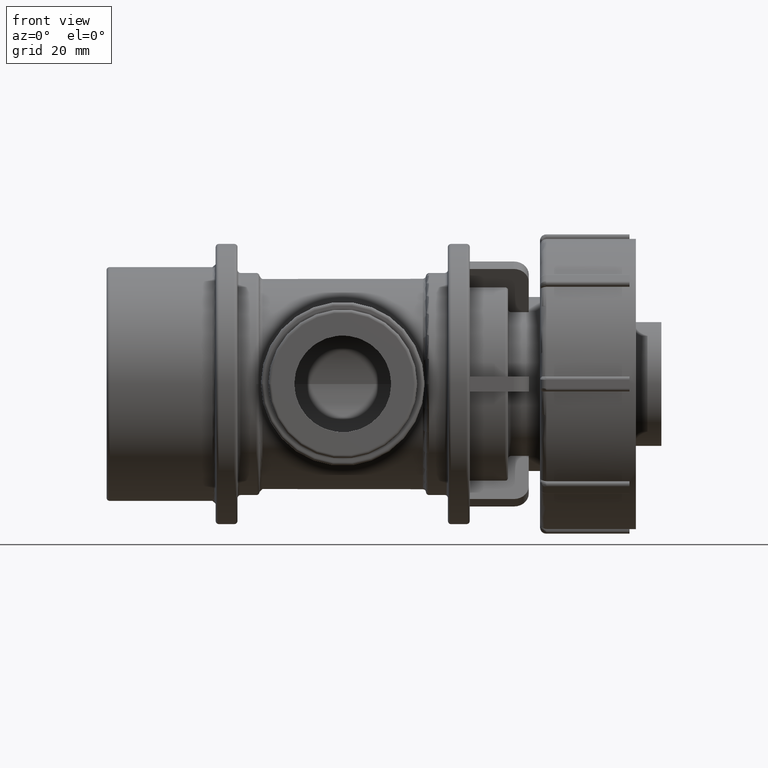
[diagram: clean part render]
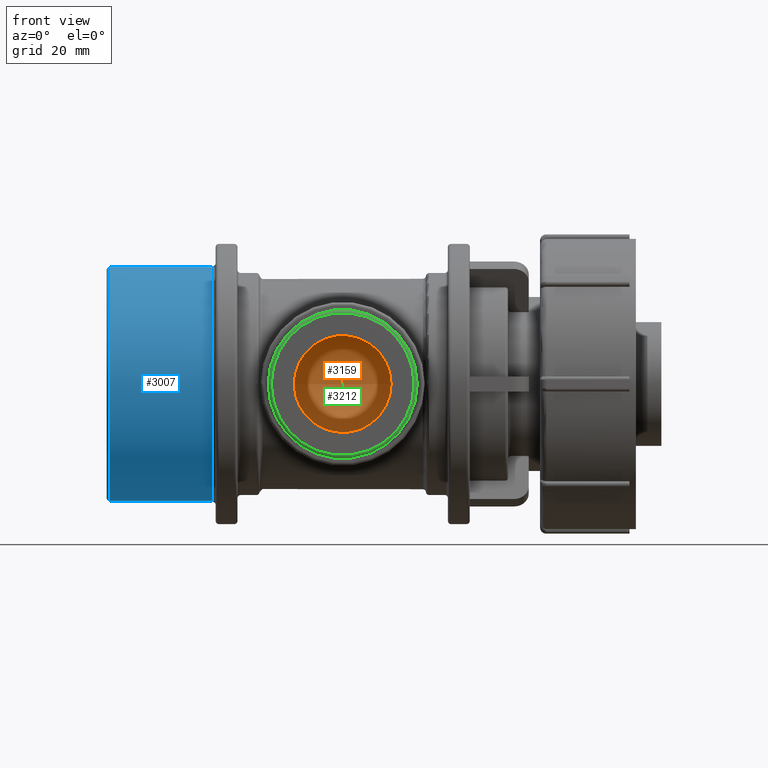
[diagram: same view with three faces highlighted in distinct colors, each labeled with its STEP entity id]
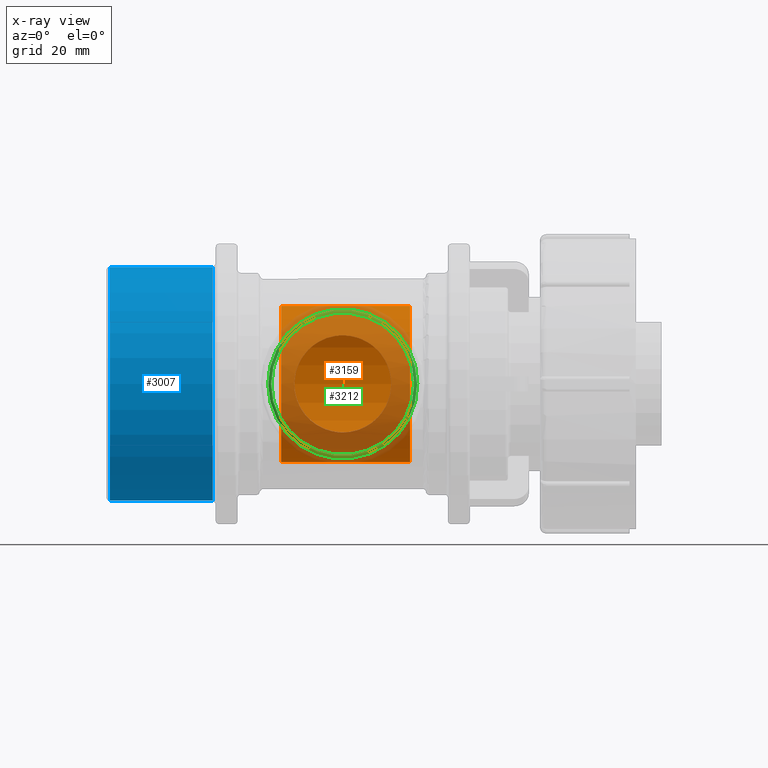
[diagram: x-ray of the same camera — body ghosted, the three highlighted faces saturated]
A machine part, front view with three faces highlighted in distinct colors.
The next image is the same camera in x-ray (body ghosted, the three faces saturated) — at least one of them is partly hidden behind the body in this view.
Their STEP definitions:

[orange] entity #3159 — the highlighted cylindrical surface (bore or boss wall) has radius 25.2 mm, axis along (1, 0, 0).
#687=CIRCLE('',#3524,25.2);
#688=CIRCLE('',#3526,25.2);
#781=FACE_BOUND('',#1208,.T.);
#782=FACE_BOUND('',#1209,.T.);
#952=FACE_OUTER_BOUND('',#1207,.T.);
#1207=EDGE_LOOP('',(#2723));
#1208=EDGE_LOOP('',(#2724));
#1209=EDGE_LOOP('',(#2725));
#1283=B_SPLINE_CURVE_WITH_KNOTS('',3,(#4610,#4611,#4612,#4613,#4614,#4615,
#4616,#4617,#4618,#4619,#4620,#4621,#4622,#4623,#4624,#4625,#4626,#4627,
#4628,#4629,#4630,#4631,#4632,#4633,#4634,#4635,#4636,#4637,#4638,#4639,
#4640,#4641,#4642,#4643,#4644,#4645,#4646,#4647,#4648,#4649,#4650,#4651,
#4652,#4653,#4654,#4655,#4656,#4657,#4658,#4659),.UNSPECIFIED.,.T.,.F.,
(4,2,2,2,2,2,2,2,2,2,2,2,2,2,2,2,2,2,2,2,2,2,2,2,4),(0.,0.303648023241202,
0.607296046482404,1.21459209296481,1.81740654079404,2.11881376470866,2.42022098862327,
2.72162821253789,3.02303543645251,3.62584988428174,4.23314593076415,4.53679395400535,
4.84044197724655,5.14409000048775,5.44773802372895,6.05503407021136,6.65784851804059,
6.95925574195521,7.26066296586982,7.56207018978444,7.86347741369906,8.46629186152829,
9.07358790801069,9.37723593125189,9.6808839544931),.UNSPECIFIED.);
#1335=VERTEX_POINT('',#4609);
#1552=VERTEX_POINT('',#5917);
#1553=VERTEX_POINT('',#5920);
#1629=EDGE_CURVE('',#1335,#1335,#1283,.T.);
#1958=EDGE_CURVE('',#1552,#1552,#687,.T.);
#1959=EDGE_CURVE('',#1553,#1553,#688,.T.);
#2723=ORIENTED_EDGE('',*,*,#1959,.F.);
#2724=ORIENTED_EDGE('',*,*,#1629,.T.);
#2725=ORIENTED_EDGE('',*,*,#1958,.T.);
#2991=CYLINDRICAL_SURFACE('',#3525,25.2);
#3159=ADVANCED_FACE('',(#952,#781,#782),#2991,.F.);
#3524=AXIS2_PLACEMENT_3D('',#5918,#4310,#4311);
#3525=AXIS2_PLACEMENT_3D('',#5919,#4312,#4313);
#3526=AXIS2_PLACEMENT_3D('',#5921,#4314,#4315);
#4310=DIRECTION('center_axis',(1.,0.,0.));
#4311=DIRECTION('ref_axis',(0.,0.,-1.));
#4312=DIRECTION('center_axis',(1.,0.,0.));
#4313=DIRECTION('ref_axis',(0.,1.,0.));
#4314=DIRECTION('center_axis',(1.,0.,0.));
#4315=DIRECTION('ref_axis',(0.,0.,-1.));
#4609=CARTESIAN_POINT('',(8.04911692853238E-15,-19.8412066366785,-15.535975));
#4610=CARTESIAN_POINT('Ctrl Pts',(8.04911692853238E-15,-19.8412066366785,
-15.535975));
#4611=CARTESIAN_POINT('Ctrl Pts',(1.01216007747068,-19.8412066366785,-15.535975));
#4612=CARTESIAN_POINT('Ctrl Pts',(2.04467810174218,-19.9210260554674,-15.4356171136275));
#4613=CARTESIAN_POINT('Ctrl Pts',(4.07530383253848,-20.2305380743822,-15.0276705934894));
#4614=CARTESIAN_POINT('Ctrl Pts',(5.07357743586594,-20.4594348165094,-14.7203043523371));
#4615=CARTESIAN_POINT('Ctrl Pts',(7.92344154467906,-21.2873019421926,-13.5216097897626));
#4616=CARTESIAN_POINT('Ctrl Pts',(9.63141314733868,-22.0234888392055,-12.3397734023507));
#4617=CARTESIAN_POINT('Ctrl Pts',(12.329780101932,-23.3305391593613,-9.64140644775737));
#4618=CARTESIAN_POINT('Ctrl Pts',(13.5184966634754,-24.000002422776,-7.93080918274525));
#4619=CARTESIAN_POINT('Ctrl Pts',(14.7218153446686,-24.7042414380443,-5.07000195905966));
#4620=CARTESIAN_POINT('Ctrl Pts',(15.0297841574804,-24.8905969788741,-4.06773267370749));
#4621=CARTESIAN_POINT('Ctrl Pts',(15.4369434017331,-25.1385486401032,-2.03510180177715));
#4622=CARTESIAN_POINT('Ctrl Pts',(15.535975,-25.2,-1.00469074638206));
#4623=CARTESIAN_POINT('Ctrl Pts',(15.535975,-25.2,1.00469074638206));
#4624=CARTESIAN_POINT('Ctrl Pts',(15.4369434017331,-25.1385486401032,2.03510180177715));
#4625=CARTESIAN_POINT('Ctrl Pts',(15.0297841574804,-24.8905969788741,4.06773267370748));
#4626=CARTESIAN_POINT('Ctrl Pts',(14.7218153446686,-24.7042414380443,5.07000195905966));
#4627=CARTESIAN_POINT('Ctrl Pts',(13.5184966634754,-24.000002422776,7.93080918274525));
#4628=CARTESIAN_POINT('Ctrl Pts',(12.329780101932,-23.3305391593613,9.64140644775737));
#4629=CARTESIAN_POINT('Ctrl Pts',(9.63141314733868,-22.0234888392055,12.3397734023507));
#4630=CARTESIAN_POINT('Ctrl Pts',(7.92344154467906,-21.2873019421926,13.5216097897626));
#4631=CARTESIAN_POINT('Ctrl Pts',(5.07357743586594,-20.4594348165094,14.7203043523371));
#4632=CARTESIAN_POINT('Ctrl Pts',(4.07530383253848,-20.2305380743822,15.0276705934894));
#4633=CARTESIAN_POINT('Ctrl Pts',(2.04467810174218,-19.9210260554674,15.4356171136275));
#4634=CARTESIAN_POINT('Ctrl Pts',(1.01216007747068,-19.8412066366785,15.535975));
#4635=CARTESIAN_POINT('Ctrl Pts',(-1.01216007747066,-19.8412066366785,15.535975));
#4636=CARTESIAN_POINT('Ctrl Pts',(-2.04467810174216,-19.9210260554674,15.4356171136275));
#4637=CARTESIAN_POINT('Ctrl Pts',(-4.07530383253846,-20.2305380743822,15.0276705934894));
#4638=CARTESIAN_POINT('Ctrl Pts',(-5.07357743586592,-20.4594348165094,14.7203043523371));
#4639=CARTESIAN_POINT('Ctrl Pts',(-7.92344154467905,-21.2873019421926,13.5216097897626));
#4640=CARTESIAN_POINT('Ctrl Pts',(-9.63141314733867,-22.0234888392055,12.3397734023507));
#4641=CARTESIAN_POINT('Ctrl Pts',(-12.329780101932,-23.3305391593613,9.64140644775737));
#4642=CARTESIAN_POINT('Ctrl Pts',(-13.5184966634754,-24.000002422776,7.93080918274525));
#4643=CARTESIAN_POINT('Ctrl Pts',(-14.7218153446685,-24.7042414380443,5.07000195905965));
#4644=CARTESIAN_POINT('Ctrl Pts',(-15.0297841574804,-24.8905969788741,4.06773267370748));
#4645=CARTESIAN_POINT('Ctrl Pts',(-15.4369434017331,-25.1385486401032,2.03510180177715));
#4646=CARTESIAN_POINT('Ctrl Pts',(-15.535975,-25.2,1.00469074638206));
#4647=CARTESIAN_POINT('Ctrl Pts',(-15.535975,-25.2,-1.00469074638205));
#4648=CARTESIAN_POINT('Ctrl Pts',(-15.4369434017331,-25.1385486401032,-2.03510180177715));
#4649=CARTESIAN_POINT('Ctrl Pts',(-15.0297841574804,-24.8905969788741,-4.06773267370748));
#4650=CARTESIAN_POINT('Ctrl Pts',(-14.7218153446685,-24.7042414380443,-5.07000195905965));
#4651=CARTESIAN_POINT('Ctrl Pts',(-13.5184966634754,-24.000002422776,-7.93080918274525));
#4652=CARTESIAN_POINT('Ctrl Pts',(-12.329780101932,-23.3305391593613,-9.64140644775736));
#4653=CARTESIAN_POINT('Ctrl Pts',(-9.63141314733867,-22.0234888392055,-12.3397734023507));
#4654=CARTESIAN_POINT('Ctrl Pts',(-7.92344154467905,-21.2873019421926,-13.5216097897626));
#4655=CARTESIAN_POINT('Ctrl Pts',(-5.07357743586592,-20.4594348165094,-14.7203043523371));
#4656=CARTESIAN_POINT('Ctrl Pts',(-4.07530383253846,-20.2305380743822,-15.0276705934894));
#4657=CARTESIAN_POINT('Ctrl Pts',(-2.04467810174216,-19.9210260554674,-15.4356171136275));
#4658=CARTESIAN_POINT('Ctrl Pts',(-1.01216007747066,-19.8412066366785,-15.535975));
#4659=CARTESIAN_POINT('Ctrl Pts',(8.32667268468867E-15,-19.8412066366785,
-15.535975));
#5917=CARTESIAN_POINT('',(21.6224491810719,25.2,0.));
#5918=CARTESIAN_POINT('Origin',(21.6224491810719,0.,0.));
#5919=CARTESIAN_POINT('Origin',(0.929937972745547,0.,0.));
#5920=CARTESIAN_POINT('',(-19.7625732355808,25.2,0.));
#5921=CARTESIAN_POINT('Origin',(-19.7625732355808,0.,0.));

[blue] entity #3007 — the highlighted cylindrical surface (bore or boss wall) has radius 37.5 mm, axis along (1, 0, 0).
#512=CIRCLE('',#3229,37.5);
#513=CIRCLE('',#3231,37.5);
#740=FACE_BOUND('',#1015,.T.);
#800=FACE_OUTER_BOUND('',#1014,.T.);
#1014=EDGE_LOOP('',(#2068));
#1015=EDGE_LOOP('',(#2069));
#1337=VERTEX_POINT('',#4663);
#1338=VERTEX_POINT('',#4666);
#1631=EDGE_CURVE('',#1337,#1337,#512,.T.);
#1632=EDGE_CURVE('',#1338,#1338,#513,.T.);
#2068=ORIENTED_EDGE('',*,*,#1632,.F.);
#2069=ORIENTED_EDGE('',*,*,#1631,.F.);
#2937=CYLINDRICAL_SURFACE('',#3230,37.5);
#3007=ADVANCED_FACE('',(#800,#740),#2937,.T.);
#3229=AXIS2_PLACEMENT_3D('',#4664,#3616,#3617);
#3230=AXIS2_PLACEMENT_3D('',#4665,#3618,#3619);
#3231=AXIS2_PLACEMENT_3D('',#4667,#3620,#3621);
#3616=DIRECTION('center_axis',(-1.,0.,0.));
#3617=DIRECTION('ref_axis',(0.,-1.,1.83697019872103E-16));
#3618=DIRECTION('center_axis',(1.,0.,0.));
#3619=DIRECTION('ref_axis',(0.,1.,0.));
#3620=DIRECTION('center_axis',(1.,0.,0.));
#3621=DIRECTION('ref_axis',(0.,-1.,1.83697019872103E-16));
#4663=CARTESIAN_POINT('',(-74.75,37.5,-1.14810637420064E-14));
#4664=CARTESIAN_POINT('Origin',(-74.75,0.,0.));
#4665=CARTESIAN_POINT('Origin',(-58.25,0.,0.));
#4666=CARTESIAN_POINT('',(-41.75,37.5,-2.29621274840129E-15));
#4667=CARTESIAN_POINT('Origin',(-41.75,0.,0.));

[green] entity #3212 — the highlighted toroidal blend (fillet) surface has major radius 22.9015 mm and minor (blend) radius 1 mm.
#710=CIRCLE('',#3601,22.9015);
#711=CIRCLE('',#3602,23.9015);
#737=TOROIDAL_SURFACE('',#3600,22.9015,1.);
#793=FACE_BOUND('',#1273,.T.);
#1005=FACE_OUTER_BOUND('',#1272,.T.);
#1272=EDGE_LOOP('',(#2926));
#1273=EDGE_LOOP('',(#2927));
#1625=VERTEX_POINT('',#6261);
#1626=VERTEX_POINT('',#6263);
#2061=EDGE_CURVE('',#1625,#1625,#710,.T.);
#2062=EDGE_CURVE('',#1626,#1626,#711,.T.);
#2926=ORIENTED_EDGE('',*,*,#2061,.T.);
#2927=ORIENTED_EDGE('',*,*,#2062,.T.);
#3212=ADVANCED_FACE('',(#1005,#793),#737,.T.);
#3600=AXIS2_PLACEMENT_3D('',#6260,#4540,#4541);
#3601=AXIS2_PLACEMENT_3D('',#6262,#4542,#4543);
#3602=AXIS2_PLACEMENT_3D('',#6264,#4544,#4545);
#4540=DIRECTION('center_axis',(-1.22464679914735E-16,1.,0.));
#4541=DIRECTION('ref_axis',(0.,0.,1.));
#4542=DIRECTION('center_axis',(-1.22464679914735E-16,1.,0.));
#4543=DIRECTION('ref_axis',(1.,1.22464679914735E-16,0.));
#4544=DIRECTION('center_axis',(1.22464679914735E-16,-1.,0.));
#4545=DIRECTION('ref_axis',(1.,1.21931068746356E-16,0.));
#6260=CARTESIAN_POINT('Origin',(8.57252759403147E-15,-70.,0.));
#6261=CARTESIAN_POINT('',(-22.9015,-71.,2.80462486706731E-15));
#6262=CARTESIAN_POINT('Origin',(8.69499227394621E-15,-71.,0.));
#6263=CARTESIAN_POINT('',(-23.9015,-70.,-2.92708954698205E-15));
#6264=CARTESIAN_POINT('Origin',(8.57252759403147E-15,-70.,0.));